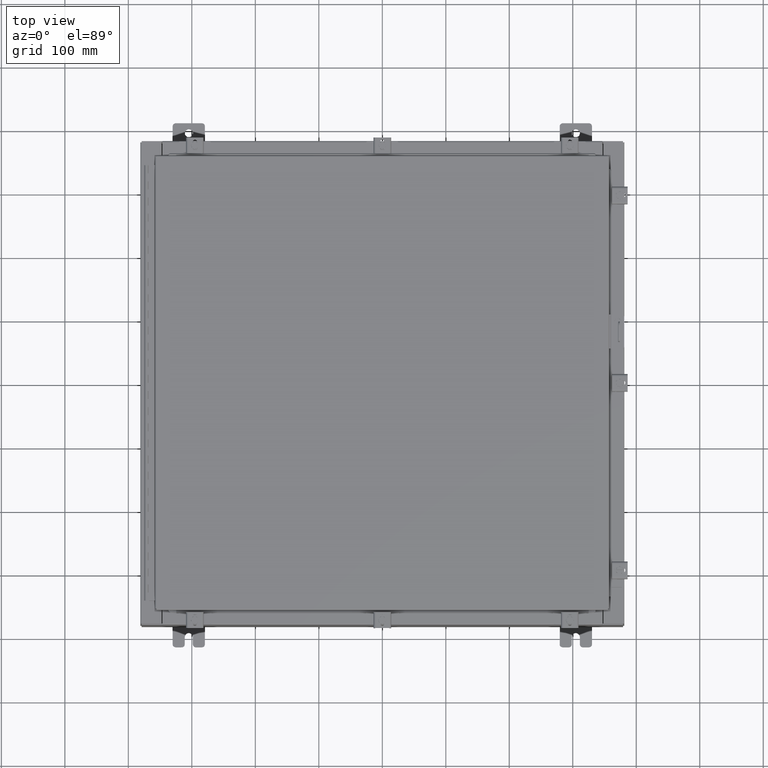
[diagram: clean part render]
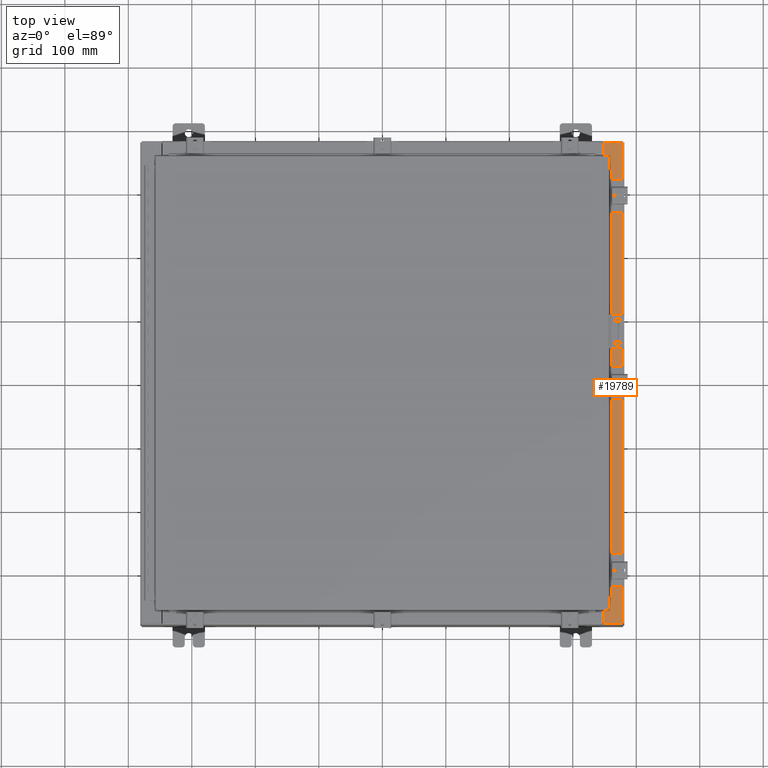
[diagram: same view with one face highlighted and labeled with its STEP entity id]
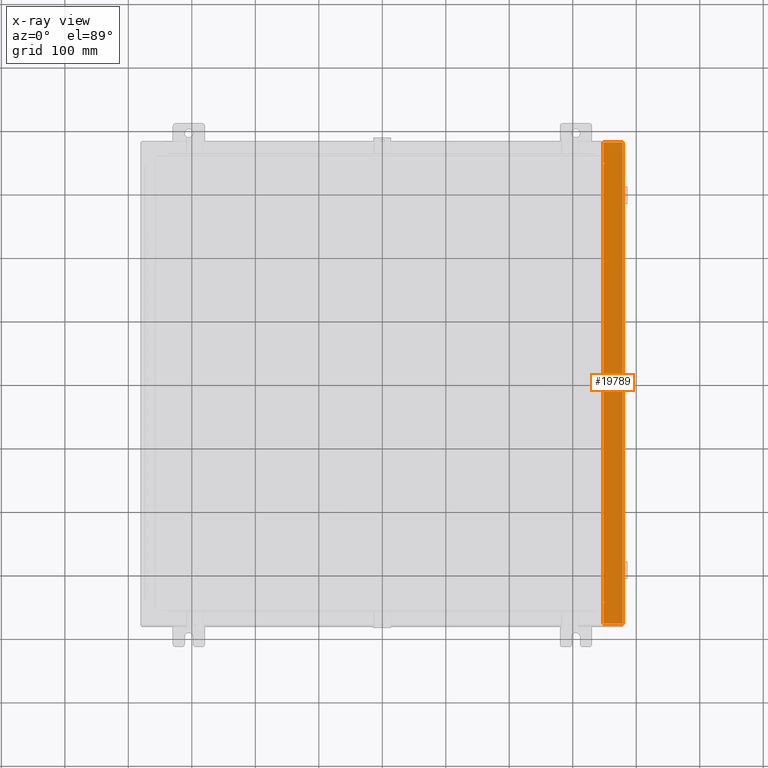
[diagram: x-ray of the same camera — body ghosted, the highlighted face saturated]
A machine part, top view. The second image highlights one B-rep face of the part: STEP entity #19789.
The next image is the same camera in x-ray: the body ghosted, the highlighted face saturated — about 0% of this face is hidden behind the body in this view.
In plain terms, the highlighted planar face has unit normal (-0, 0, -1).
Its self-contained STEP definition (entity closure, byte-faithful):
#644 = DIRECTION ( 'NONE',  ( -1.000000000000000000, 0.0000000000000000000, 6.241167087353087800E-015 ) ) ;
#1104 = EDGE_CURVE ( 'NONE', #8318, #21432, #6762, .T. ) ;
#1279 = EDGE_CURVE ( 'NONE', #14946, #14903, #2031, .T. ) ;
#1805 = FACE_OUTER_BOUND ( 'NONE', #1870, .T. ) ;
#1870 = EDGE_LOOP ( 'NONE', ( #35032, #36332, #18573, #28145, #25523, #22531, #19891, #31642, #28725, #4895, #6249, #11356 ) ) ;
#1913 = VERTEX_POINT ( 'NONE', #22337 ) ;
#2031 = LINE ( 'NONE', #15711, #17149 ) ;
#2680 = AXIS2_PLACEMENT_3D ( 'NONE', #28752, #10672, #31765 ) ;
#2916 = DIRECTION ( 'NONE',  ( -1.000000000000000000, 0.0000000000000000000, 0.0000000000000000000 ) ) ;
#3583 = PLANE ( 'NONE',  #28626 ) ;
#4560 = DIRECTION ( 'NONE',  ( 1.000000000000000000, 0.0000000000000000000, 0.0000000000000000000 ) ) ;
#4895 = ORIENTED_EDGE ( 'NONE', *, *, #13426, .F. ) ;
#5006 = LINE ( 'NONE', #25118, #28159 ) ;
#5721 = LINE ( 'NONE', #10148, #28879 ) ;
#5824 = EDGE_CURVE ( 'NONE', #7836, #18922, #13659, .T. ) ;
#6249 = ORIENTED_EDGE ( 'NONE', *, *, #1104, .F. ) ;
#6549 = DIRECTION ( 'NONE',  ( 6.241167087353086200E-015, 0.0000000000000000000, 1.000000000000000000 ) ) ;
#6626 = DIRECTION ( 'NONE',  ( -1.000000000000000000, 0.0000000000000000000, 6.241167087353086200E-015 ) ) ;
#6645 = VERTEX_POINT ( 'NONE', #36405 ) ;
#6762 = LINE ( 'NONE', #23919, #37891 ) ;
#7364 = DIRECTION ( 'NONE',  ( -1.000000000000000000, 0.0000000000000000000, 0.0000000000000000000 ) ) ;
#7754 = VECTOR ( 'NONE', #36506, 39.37007874015748100 ) ;
#7836 = VERTEX_POINT ( 'NONE', #14264 ) ;
#8318 = VERTEX_POINT ( 'NONE', #34833 ) ;
#9463 = EDGE_CURVE ( 'NONE', #32985, #8318, #22310, .T. ) ;
#9688 = VERTEX_POINT ( 'NONE', #13674 ) ;
#10148 = CARTESIAN_POINT ( 'NONE',  ( 13.75005000000003200, 13.63109999999998600, 7.925300000000008900 ) ) ;
#10212 = CARTESIAN_POINT ( 'NONE',  ( 13.69970000000003000, 14.92530000000000200, 7.925300000000007100 ) ) ;
#10402 = CARTESIAN_POINT ( 'NONE',  ( 14.91230000000002900, 14.92530000000000200, 7.925300000000000000 ) ) ;
#10672 = DIRECTION ( 'NONE',  ( 6.241167087353086200E-015, 0.0000000000000000000, 1.000000000000000000 ) ) ;
#11189 = VECTOR ( 'NONE', #35624, 39.37007874015748100 ) ;
#11356 = ORIENTED_EDGE ( 'NONE', *, *, #9463, .F. ) ;
#11464 = EDGE_CURVE ( 'NONE', #14903, #9688, #5006, .T. ) ;
#11513 = CARTESIAN_POINT ( 'NONE',  ( 13.69970000000003000, 0.0000000000000000000, 7.925300000000007100 ) ) ;
#12663 = CARTESIAN_POINT ( 'NONE',  ( 4.972393517345230000E-014, 14.92530000000000000, 7.925300000000092400 ) ) ;
#13045 = VERTEX_POINT ( 'NONE', #10212 ) ;
#13375 = CARTESIAN_POINT ( 'NONE',  ( 13.69970000000003000, -13.63110000000000400, 7.925300000000008900 ) ) ;
#13426 = EDGE_CURVE ( 'NONE', #21432, #1913, #23808, .T. ) ;
#13659 = CIRCLE ( 'NONE', #2680, 0.01867499999999949400 ) ;
#13674 = CARTESIAN_POINT ( 'NONE',  ( 14.91230000000002900, -14.92530000000000200, 7.925300000000000000 ) ) ;
#14264 = CARTESIAN_POINT ( 'NONE',  ( 13.75005000000003200, 13.59374999999998600, 7.925300000000006200 ) ) ;
#14903 = VERTEX_POINT ( 'NONE', #33742 ) ;
#14946 = VERTEX_POINT ( 'NONE', #33882 ) ;
#15711 = CARTESIAN_POINT ( 'NONE',  ( 13.69970000000003000, 0.0000000000000000000, 7.925300000000007100 ) ) ;
#15791 = VECTOR ( 'NONE', #4560, 39.37007874015748100 ) ;
#17149 = VECTOR ( 'NONE', #27752, 39.37007874015748100 ) ;
#18573 = ORIENTED_EDGE ( 'NONE', *, *, #11464, .T. ) ;
#18922 = VERTEX_POINT ( 'NONE', #29410 ) ;
#19596 = EDGE_CURVE ( 'NONE', #30381, #9688, #31596, .T. ) ;
#19789 = ADVANCED_FACE ( 'NONE', ( #1805 ), #3583, .F. ) ;
#19891 = ORIENTED_EDGE ( 'NONE', *, *, #36846, .F. ) ;
#20138 = LINE ( 'NONE', #11513, #11189 ) ;
#20193 = EDGE_CURVE ( 'NONE', #30381, #13045, #34499, .T. ) ;
#20266 = CARTESIAN_POINT ( 'NONE',  ( 13.71270000000003200, -13.59375000000000400, 7.925300000000008900 ) ) ;
#20772 = CARTESIAN_POINT ( 'NONE',  ( 14.91230000000002900, -14.92530000000000200, 7.925300000000000000 ) ) ;
#21432 = VERTEX_POINT ( 'NONE', #20266 ) ;
#22203 = DIRECTION ( 'NONE',  ( 1.000000000000000000, 1.783190596386596200E-015, -6.241167087353087800E-015 ) ) ;
#22310 = CIRCLE ( 'NONE', #24371, 0.01867499999999949400 ) ;
#22337 = CARTESIAN_POINT ( 'NONE',  ( 13.71270000000003200, 13.59374999999998600, 7.925300000000008900 ) ) ;
#22531 = ORIENTED_EDGE ( 'NONE', *, *, #24149, .T. ) ;
#22568 = VECTOR ( 'NONE', #38782, 39.37007874015748100 ) ;
#23808 = LINE ( 'NONE', #24537, #7754 ) ;
#23821 = LINE ( 'NONE', #25667, #15791 ) ;
#23919 = CARTESIAN_POINT ( 'NONE',  ( 13.75005000000003200, -13.59375000000000400, 7.925300000000008900 ) ) ;
#24149 = EDGE_CURVE ( 'NONE', #13045, #6645, #20138, .T. ) ;
#24371 = AXIS2_PLACEMENT_3D ( 'NONE', #24620, #6549, #27670 ) ;
#24537 = CARTESIAN_POINT ( 'NONE',  ( 13.71270000000003200, -13.59375000000000000, 7.925300000000008900 ) ) ;
#24620 = CARTESIAN_POINT ( 'NONE',  ( 13.75005000000003200, -13.61242500000000400, 7.925300000000008900 ) ) ;
#24695 = DIRECTION ( 'NONE',  ( -6.241167087353086200E-015, 0.0000000000000000000, -1.000000000000000000 ) ) ;
#25118 = CARTESIAN_POINT ( 'NONE',  ( 7.633858978173037400E-014, -14.92530000000002700, 7.925300000000092400 ) ) ;
#25523 = ORIENTED_EDGE ( 'NONE', *, *, #20193, .T. ) ;
#25527 = DIRECTION ( 'NONE',  ( 1.000000000000000000, 0.0000000000000000000, 0.0000000000000000000 ) ) ;
#25667 = CARTESIAN_POINT ( 'NONE',  ( 13.71270000000003200, 13.59374999999998600, 7.925300000000008900 ) ) ;
#26477 = VECTOR ( 'NONE', #644, 39.37007874015748100 ) ;
#27670 = DIRECTION ( 'NONE',  ( 1.000000000000000000, 0.0000000000000000000, 0.0000000000000000000 ) ) ;
#27752 = DIRECTION ( 'NONE',  ( -2.590438124695581200E-031, -1.000000000000000000, 1.616735716567471300E-045 ) ) ;
#28145 = ORIENTED_EDGE ( 'NONE', *, *, #19596, .F. ) ;
#28159 = VECTOR ( 'NONE', #22203, 39.37007874015748100 ) ;
#28626 = AXIS2_PLACEMENT_3D ( 'NONE', #30662, #24695, #6626 ) ;
#28725 = ORIENTED_EDGE ( 'NONE', *, *, #38342, .F. ) ;
#28752 = CARTESIAN_POINT ( 'NONE',  ( 13.75005000000003200, 13.61242499999998600, 7.925300000000008900 ) ) ;
#28879 = VECTOR ( 'NONE', #7364, 39.37007874015748100 ) ;
#29410 = CARTESIAN_POINT ( 'NONE',  ( 13.75005000000003200, 13.63109999999998600, 7.925300000000006200 ) ) ;
#30381 = VERTEX_POINT ( 'NONE', #10402 ) ;
#30662 = CARTESIAN_POINT ( 'NONE',  ( 4.972393517345230000E-014, 0.0000000000000000000, 7.925300000000092400 ) ) ;
#30982 = VECTOR ( 'NONE', #25527, 39.37007874015748100 ) ;
#31596 = LINE ( 'NONE', #20772, #22568 ) ;
#31642 = ORIENTED_EDGE ( 'NONE', *, *, #5824, .F. ) ;
#31765 = DIRECTION ( 'NONE',  ( 1.000000000000000000, 0.0000000000000000000, 0.0000000000000000000 ) ) ;
#32985 = VERTEX_POINT ( 'NONE', #35774 ) ;
#33742 = CARTESIAN_POINT ( 'NONE',  ( 13.69970000000003000, -14.92530000000000200, 7.925300000000007100 ) ) ;
#33882 = CARTESIAN_POINT ( 'NONE',  ( 13.69970000000003000, -13.63110000000000400, 7.925300000000007100 ) ) ;
#34499 = LINE ( 'NONE', #12663, #26477 ) ;
#34833 = CARTESIAN_POINT ( 'NONE',  ( 13.75005000000003200, -13.59375000000000400, 7.925300000000006200 ) ) ;
#35032 = ORIENTED_EDGE ( 'NONE', *, *, #37474, .F. ) ;
#35624 = DIRECTION ( 'NONE',  ( -2.590438124695581200E-031, -1.000000000000000000, 1.616735716567471300E-045 ) ) ;
#35774 = CARTESIAN_POINT ( 'NONE',  ( 13.75005000000003200, -13.63110000000000400, 7.925300000000006200 ) ) ;
#36332 = ORIENTED_EDGE ( 'NONE', *, *, #1279, .T. ) ;
#36405 = CARTESIAN_POINT ( 'NONE',  ( 13.69970000000003000, 13.63109999999998600, 7.925300000000007100 ) ) ;
#36506 = DIRECTION ( 'NONE',  ( -0.0000000000000000000, 1.000000000000000000, -0.0000000000000000000 ) ) ;
#36846 = EDGE_CURVE ( 'NONE', #18922, #6645, #5721, .T. ) ;
#37474 = EDGE_CURVE ( 'NONE', #14946, #32985, #38946, .T. ) ;
#37891 = VECTOR ( 'NONE', #2916, 39.37007874015748100 ) ;
#38342 = EDGE_CURVE ( 'NONE', #1913, #7836, #23821, .T. ) ;
#38782 = DIRECTION ( 'NONE',  ( -0.0000000000000000000, -1.000000000000000000, -0.0000000000000000000 ) ) ;
#38946 = LINE ( 'NONE', #13375, #30982 ) ;